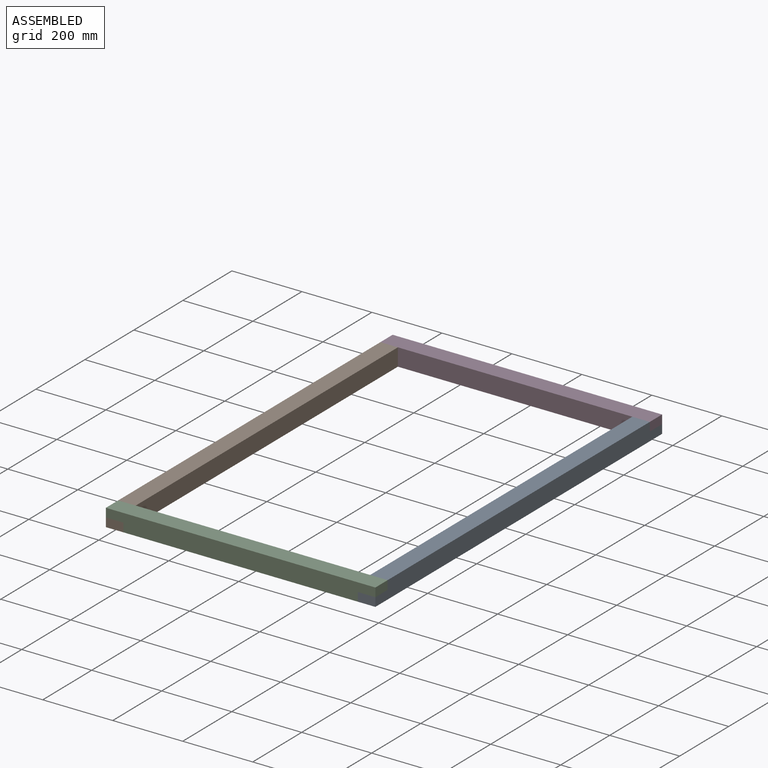
[diagram: assembled view]
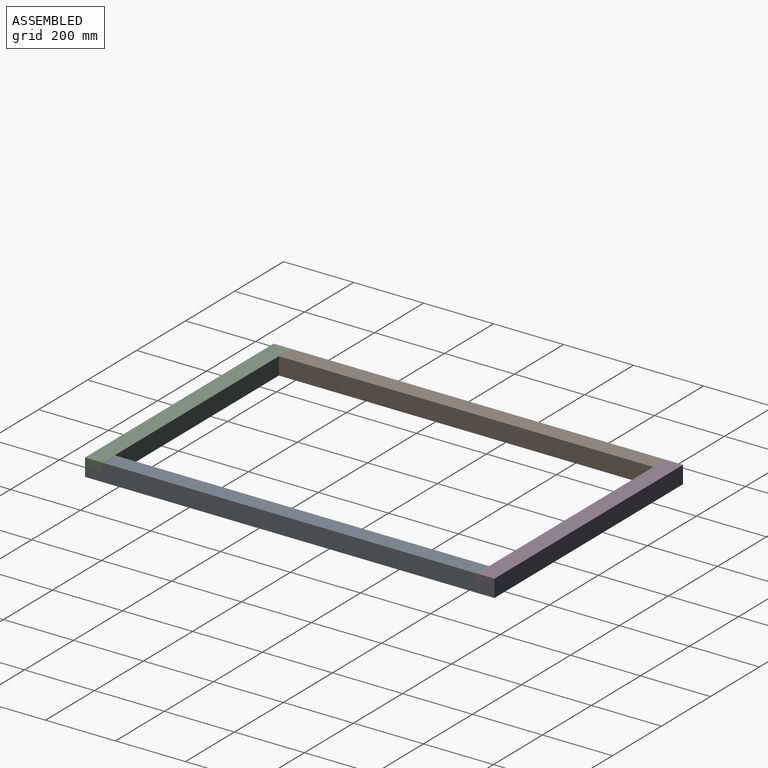
[diagram: assembled view, second angle]
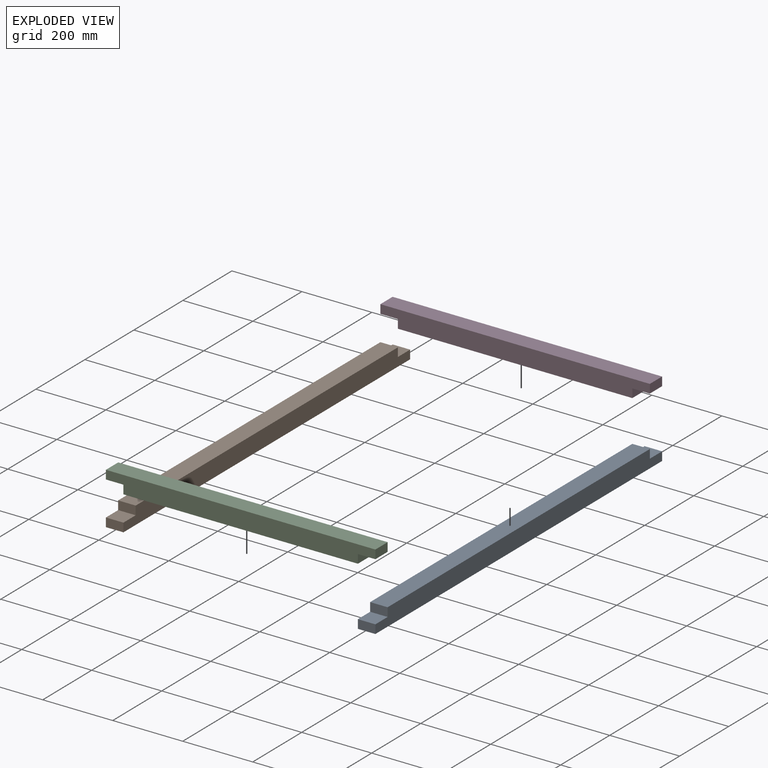
[diagram: exploded view]
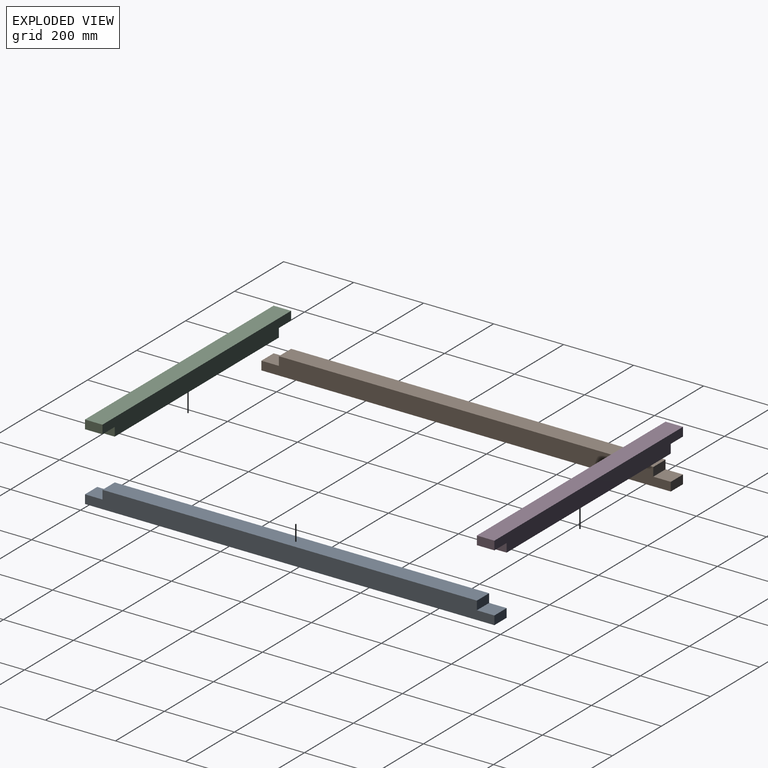
[diagram: exploded view, second angle]
ASSEMBLY  parts=4 mates=3
PART A: 10 faces, bbox 50x1170x50 mm
  f0: plane 50x50mm, normal (0,0,1), area 2500mm2, adj f1,f7,f8,f9
  f1: plane 50x25mm, normal (0,1,0), area 1250mm2, adj f0,f2,f8,f9
  f2: plane 1070x50mm, normal (0,0,1), area 53500mm2, adj f1,f3,f8,f9
  f3: plane 50x25mm, normal (0,-1,0), area 1250mm2, adj f2,f4,f8,f9
  f4: plane 50x50mm, normal (0,0,1), area 2500mm2, adj f3,f5,f8,f9
  f5: plane 50x25mm, normal (0,-1,0), area 1250mm2, adj f4,f6,f8,f9
  f6: plane 1170x50mm, normal (0,0,-1), area 58500mm2, adj f5,f7,f8,f9
  f7: plane 50x25mm, normal (0,1,0), area 1250mm2, adj f0,f6,f8,f9
  f8: plane 1170x50mm, normal (1,0,0), area 56000mm2, adj f0,f1,f2,f3,f4,f5,f6,f7
  f9: plane 1170x50mm, normal (-1,0,0), area 56000mm2, adj f0,f1,f2,f3,f4,f5,f6,f7
PART B: same geometry as A
PART C: 10 faces, bbox 770x50x50 mm
  f0: plane 50x25mm, normal (1,0,0), area 1250mm2, adj f1,f7,f8,f9
  f1: plane 50x50mm, normal (0,0,-1), area 2500mm2, adj f0,f2,f8,f9
  f2: plane 50x25mm, normal (1,0,0), area 1250mm2, adj f1,f3,f8,f9
  f3: plane 770x50mm, normal (0,0,1), area 38500mm2, adj f2,f4,f8,f9
  f4: plane 50x25mm, normal (-1,0,0), area 1250mm2, adj f3,f5,f8,f9
  f5: plane 50x50mm, normal (0,0,-1), area 2500mm2, adj f4,f6,f8,f9
  f6: plane 50x25mm, normal (-1,0,0), area 1250mm2, adj f5,f7,f8,f9
  f7: plane 670x50mm, normal (0,0,-1), area 33500mm2, adj f0,f6,f8,f9
  f8: plane 770x50mm, normal (0,-1,0), area 36000mm2, adj f0,f1,f2,f3,f4,f5,f6,f7
  f9: plane 770x50mm, normal (0,1,0), area 36000mm2, adj f0,f1,f2,f3,f4,f5,f6,f7
PART D: same geometry as C
PLACE A t=(-74.41,505.67,-25)mm
PLACE B t=(-794.41,505.67,-25)mm
PLACE C t=(-74.41,-614.33,-25)mm
PLACE D t=(-74.41,505.67,-25)mm
MATE fastened B.f4 <-> C.f5  axis (0,0,1) through (-769.41,-639.33,0)mm
MATE fastened B.f0 <-> D.f5  axis (0,0,1) through (-769.41,480.67,0)mm
MATE fastened A.f4 <-> C.f1  axis (0,0,1) through (-49.41,-639.33,0)mm
